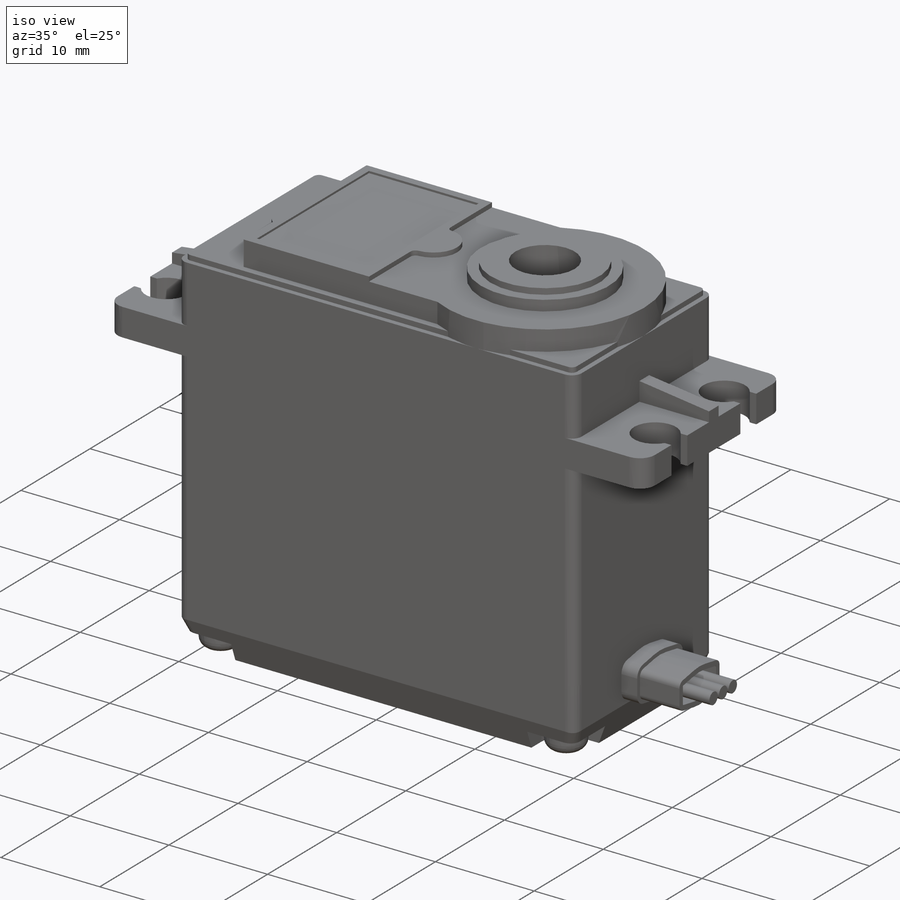
[diagram: iso view]
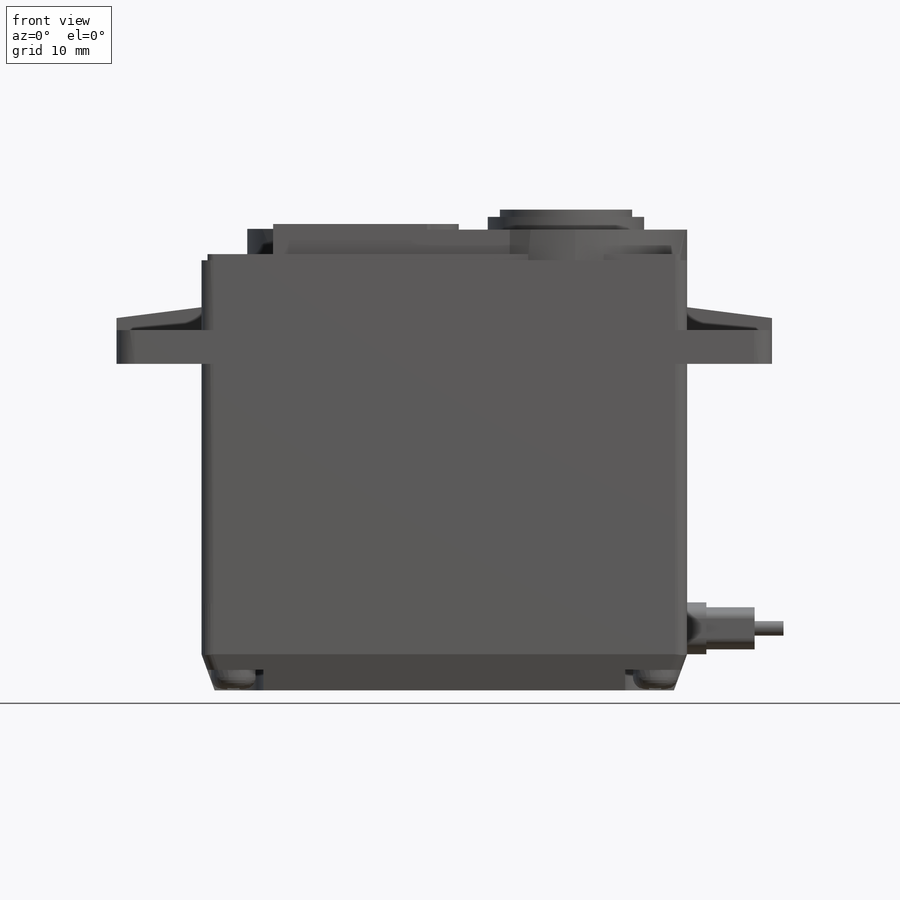
[diagram: front view]
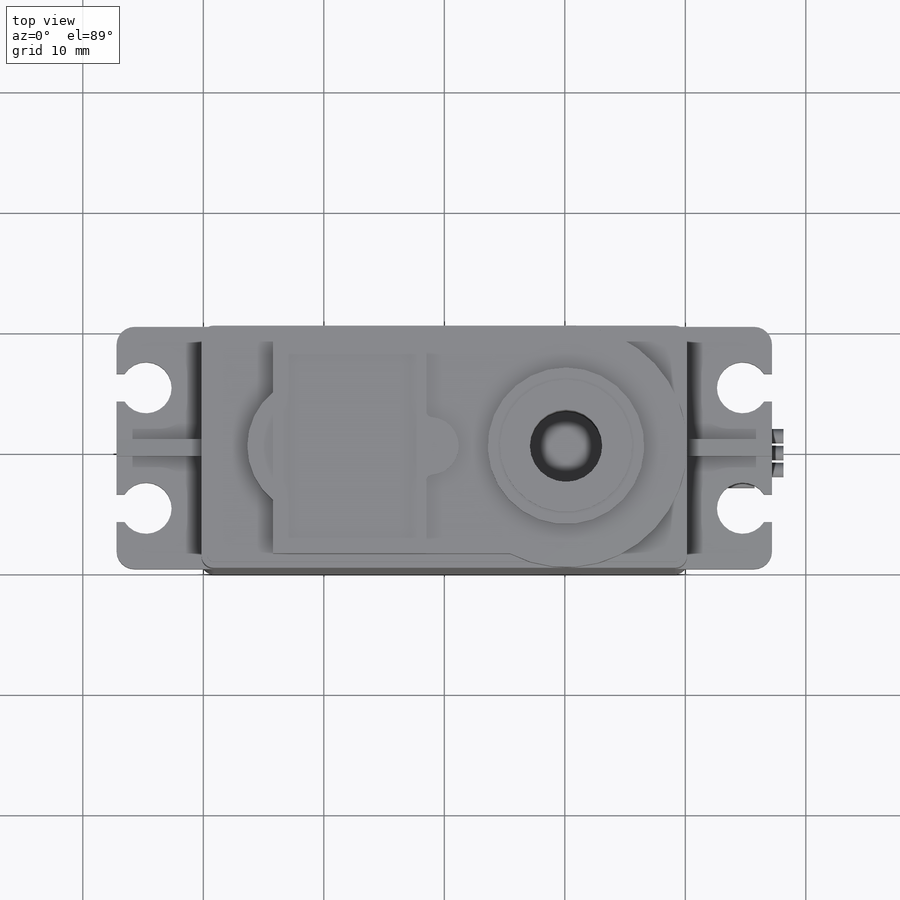
[diagram: top view]
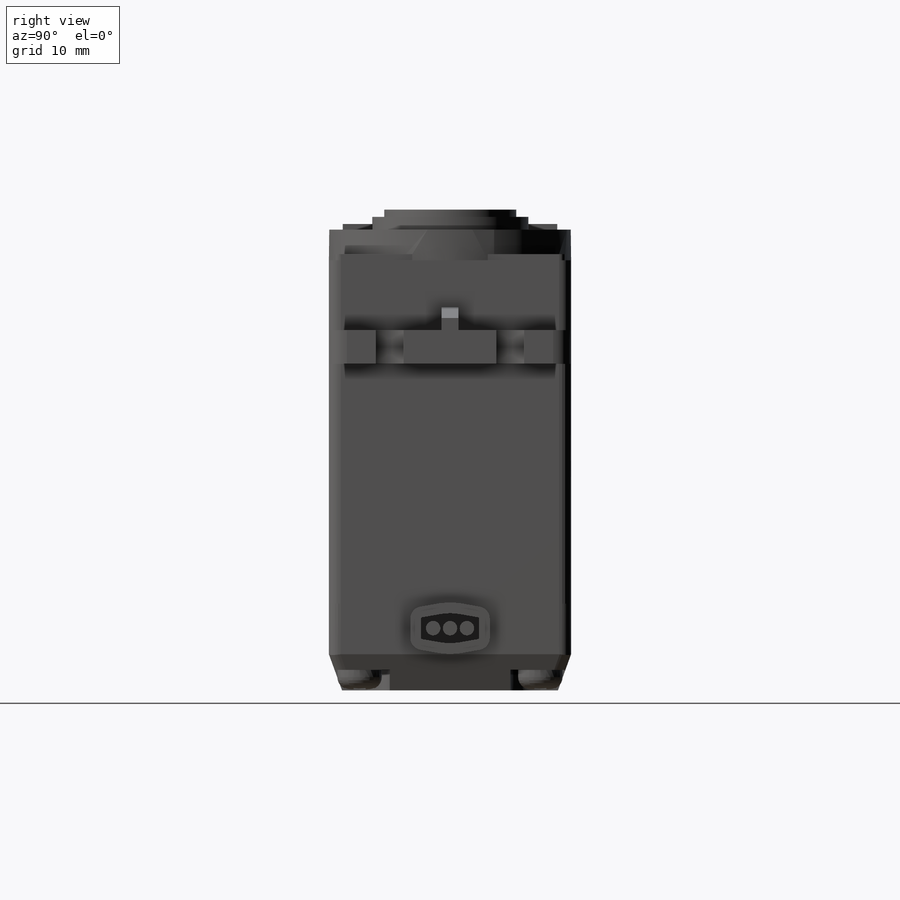
[diagram: right view]
SOLIDWORKS PART (.sldprt)
format: sldprt  version: not decoded by parser v0  size: 1,709,056 bytes
history: native  units: mm
features: sketch x25, cut_extrude x12, extrude x5, plane x4, fillet x3, hole x2, pattern_circular x2, material x1, revolve x1, cut_revolve x1 + 1 further entry (+10 scaffold rows collapsed)
feature tree (67):
  scaffold x10  (default folders/planes/origin — collapsed)
  material  "Matériau <non spécifié>"
  plane  "Plan de face"
  plane  "Plan de dessus"
  plane  "Plan de droite"
  sketch  "Esquisse24"  dims[c1.D3=13.0mm c1.D6=12.99mm c1.D7=12.99mm c1.D4=13.0mm c2.D6=11.0mm c2.D9=11.5mm c2.D13=4.8mm c2.D16=0.5mm c2.D1=~12.358289mm c2.D2=~40.57095mm c3.D1=19.8mm c3.D2=54.4mm c3.D4=10.6mm c3.D5=39.8mm c4.D4=3.33mm c4.D3=23.48mm c4.D7=10.075mm c5.D3=10.1mm c5.D7=49.5mm c5.D8=10.0mm c5.D10=~18.039338mm c5.D11=~18.111785mm c6.D10=17.8mm c6.D11=~5.727931mm c6.D12=19.8mm c7.D11=5.7mm c7.D12=10.6mm c7.D14=1.2mm c7.D15=12.7mm]
  sketch  "Esquisse1"  dims[c1.D1=64.77mm c1.D2=~103.731264mm c2.D1=~10.91908mm c2.D2=~126.81023mm c3.D1=54.42mm c3.D2=49.5mm c3.D3=40.3mm c3.D4=27.1mm c3.D5=38.7mm c3.D6=2.8mm c3.D7=40.0mm c4.D2=49.5mm c4.D1=54.4mm c4.D8=~6.807506mm c4.D9=~3.047232mm c5.D8=6.0mm c5.D9=44.22mm]
  extrude  "Boss.-Extru.1"  Depth=20.1mm
  sketch  "Esquisse2"  dims[c1.D1=~3.955547mm c1.D2=~9.36725mm c2.D1=4.7mm c2.D2=5.6mm c2.D3=8.5mm c3.D3=~34.592289deg c4.D3=8.5mm c4.D2=~3.522783mm c5.D2=35.0deg c5.D3=4.0mm c6.D2=~7.169675mm c6.D1=4.7mm c7.D2=3.8mm]
  extrude  "Boss.-Extru.2"  Depth=1.4mm
  sketch  "Esquisse3"  dims[c1.D1=~6.387452mm c1.D2=4.25mm c2.D1=10.0mm c2.D3=~1.974196mm c2.D4=~3.997746mm c3.D3=2.3mm c3.D4=49.5mm]
  cut_extrude  "Enlèv. mat.-Extru.1"  [1 undecoded]
  fillet  "Congé1"  Radius=1.5mm
  fillet  "Congé2"  Radius=1mm
  sketch  "Esquisse5"  dims[c1.D3=~4.560933mm c1.D1=55.75mm c1.D2=52.05mm c2.D3=59.05mm c2.D4=21.6mm c2.D5=~18.238911mm]
  cut_extrude  "Enlèv. mat.-Extru.3"  Depth=2.5mm
  sketch  "Esquisse25"  dims[D1=~21.159172mm]
  cut_extrude  "Enlèv. mat.-Extru.9"  [1 undecoded]
  sketch  "Esquisse26"  dims[D1=~8.967162mm]
  cut_extrude  "Enlèv. mat.-Extru.10"  Depth=0.4mm
  sketch  "Esquisse27"
  cut_extrude  "Enlèv. mat.-Extru.11"  Depth=0.46mm
  sketch  "Esquisse28"  dims[c1.D1=~12.725197mm c1.D2=~5.496698mm c2.D1=0.8mm]
  cut_extrude  "Enlèv. mat.-Extru.12"  Depth=0.2mm
  sketch  "Esquisse29"  dims[c1.D1=~3.288477mm c1.D2=~4.591808mm c2.D1=39.3mm c2.D2=39.9mm]
  revolve  "Révolution3"  Angle=360deg
  sketch  "Esquisse30"  dims[c1.D1=~11.122443mm c1.D2=~2.332551mm c2.D1=6.0mm c2.D2=10.0mm]
  cut_revolve  "Enlèvement de matière-Révolution1"  Angle=360deg
  sketch  "Esquisse34"  dims[c1.D4=~39.066178mm c1.D5=~55.968865mm c2.D4=~33.784163mm c2.D1=0.5mm c2.D2=0.5mm c2.D3=0.5mm]
  cut_extrude  "Enlèv. mat.-Extru.15"  Depth=0.5mm
  sketch  "Esquisse31"  dims[c1.D1=3.0mm c1.D2=3.0mm c2.D2=20.0deg c2.D3=~10.852286mm]
  cut_extrude  "Enlèv. mat.-Extru.13"  [1 undecoded]
  sketch  "Esquisse32"  dims[c1.D1=3.0mm c2.D1=20.0deg]
  cut_extrude  "Enlèv. mat.-Extru.14"  [1 undecoded]
  fillet  "Congé3"  Radius=1mm
  sketch  "Esquisse13"  dims[c1.D1=~3.970578mm c1.D2=~6.605718mm c1.D3=5.0mm c1.D4=~1.979602mm c2.D1=15.0mm c2.D2=20.0mm c2.D3=~11.09718mm c2.D4=44.2mm c2.D5=22.5mm c2.D6=~5.009694mm c3.D1=15.0mm c3.D2=35.0mm]
  cut_extrude  "Enlèv. mat.-Extru.6"  Depth=1.7mm
  sketch  "Esquisse14"
  hole  "Dégagement M2.51"  Diameter=2.7mm Depth=32mm
  sketch  "Esquisse19"
  sketch  "Esquisse18"  dims[hole-wizard template sketch: 46 standard entries collapsed; hole parameters kept: c15.Diamètre du perçage=2.7mm c15.Profondeur du perçage=32.0mm c15.D3=~14.816244mm c15.Angle de pointe=118.0deg]
  "Répét. par esquisse2"
  plane  "Plan1"
  sketch  "Esquisse15"  dims[c1.D3=1.0mm c1.D1=~0.670239mm c1.D2=~2.094657mm c2.D1=3.7mm c2.D2=1.6mm c2.D3=~1.323811mm c2.D4=1.8mm c2.D5=30.0mm c2.D6=15.0mm c2.D7=2.25mm]
  hole  "Révolution2"  [1 undecoded]
  sketch  "Esquisse16"  dims[D1=2.5mm D2=1.0mm]
  cut_extrude  "Enlèv. mat.-Extru.7"  Depth=1mm
  pattern_circular  "Répétition circulaire1"  Count=2 Angle=90deg
  pattern_circular  "Répét. par esquisse1"  [2 undecoded]
  sketch  "Esquisse20"  dims[c1.D3=1.0mm c1.D5=5.0mm c1.D1=~6.108254mm c1.D2=~9.790727mm c2.D1=4.3mm c2.D2=6.6mm c2.D3=~2.484207mm c2.D4=~1.72953mm c3.D4=10.0deg c3.D6=7.3mm]
  extrude  "Boss.-Extru.4"  Depth=1.6mm
  sketch  "Esquisse21"  dims[D1=0.4mm]
  extrude  "Boss.-Extru.5"  Depth=4mm
  sketch  "Esquisse22"  dims[D1=0.5mm]
  cut_extrude  "Enlèv. mat.-Extru.8"  [1 undecoded]
  sketch  "Esquisse23"  dims[D1=1.2mm D2=1.4mm D3=~0.998257mm]
  extrude  "Boss.-Extru.6"  Depth=8mm
  sketch  "Esquisse33"  dims[D1=7.2mm]
decode coverage: 41 of 51 modeling features carry decoded parameters; 1 rows unclassified (native names shown)
note: ~ marks probable driven/reference dimensions
note: 8 parameter values undecoded
summary: no parameter record found for 6 features
note: suppression state not decoded; provenance and decode notes live in map.json
